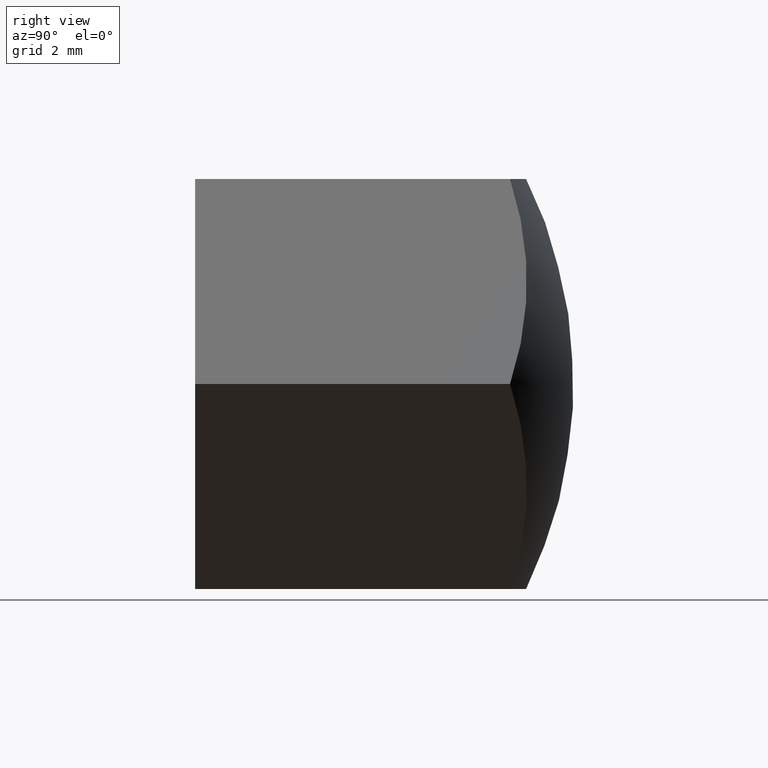
[diagram: clean part render]
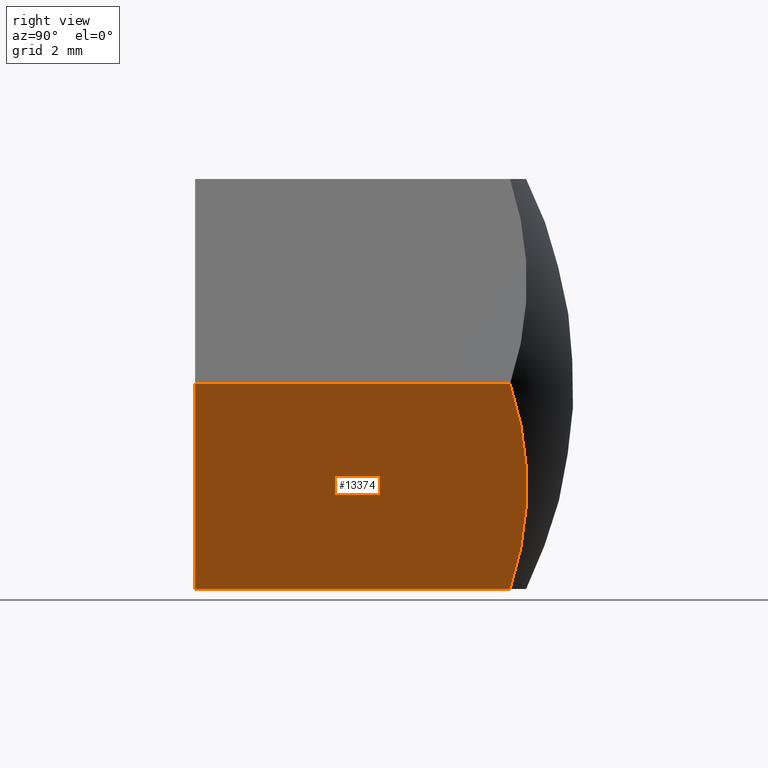
[diagram: same view with one face highlighted and labeled with its STEP entity id]
A machine part, right view. The second image highlights one B-rep face of the part: STEP entity #13374.
In plain terms, the highlighted planar face has unit normal (-0.866, 0, 0.5).
Its self-contained STEP definition (entity closure, byte-faithful):
#349 = DIRECTION ( 'NONE',  ( -0.000000000000000000, -1.000000000000000000, -0.000000000000000000 ) ) ;
#495 = EDGE_CURVE ( 'NONE', #14580, #13228, #7191, .T. ) ;
#525 = VECTOR ( 'NONE', #6351, 1000.000000000000000 ) ;
#716 = EDGE_CURVE ( 'NONE', #11361, #14580, #7917, .T. ) ;
#1242 = CARTESIAN_POINT ( 'NONE',  ( 7.505553499465134948, 0.000000000000000000, -1.452201890551049581E-15 ) ) ;
#1368 = CARTESIAN_POINT ( 'NONE',  ( 3.752776749732564809, 12.00000000000000000, -6.500000000000000000 ) ) ;
#1526 = VECTOR ( 'NONE', #349, 1000.000000000000000 ) ;
#1876 = CARTESIAN_POINT ( 'NONE',  ( 3.752776749732569250, 9.987173159185438465, -6.500000000000001776 ) ) ;
#2177 = ORIENTED_EDGE ( 'NONE', *, *, #495, .T. ) ;
#2382 = DIRECTION ( 'NONE',  ( 0.5000000000000004441, 1.764429300584336178E-15, 0.8660254037844384856 ) ) ;
#2697 = CARTESIAN_POINT ( 'NONE',  ( 7.505553499465134948, 0.000000000000000000, -1.452201890551049581E-15 ) ) ;
#3461 = CARTESIAN_POINT ( 'NONE',  ( 3.752776749732564809, 0.000000000000000000, -6.500000000000000000 ) ) ;
#3841 = EDGE_CURVE ( 'NONE', #14686, #11361, #10254, .T. ) ;
#3847 = CARTESIAN_POINT ( 'NONE',  ( 7.505553499465135836, 9.987173159185438465, 4.336808689942017736E-15 ) ) ;
#3868 = LINE ( 'NONE', #1368, #1526 ) ;
#4089 = ORIENTED_EDGE ( 'NONE', *, *, #11568, .F. ) ;
#5143 = CARTESIAN_POINT ( 'NONE',  ( 7.505553499465134948, 12.00000000000000000, -1.452201890551049581E-15 ) ) ;
#5389 = ORIENTED_EDGE ( 'NONE', *, *, #3841, .T. ) ;
#6230 = EDGE_LOOP ( 'NONE', ( #4089, #5389, #11906, #2177 ) ) ;
#6351 = DIRECTION ( 'NONE',  ( -0.000000000000000000, -1.000000000000000000, -0.000000000000000000 ) ) ;
#7191 = LINE ( 'NONE', #1242, #9023 ) ;
#7470 = DIRECTION ( 'NONE',  ( 0.5000000000000004441, 0.000000000000000000, 0.8660254037844383745 ) ) ;
#7714 = AXIS2_PLACEMENT_3D ( 'NONE', #8601, #8501, #7470 ) ;
#7863 = AXIS2_PLACEMENT_3D ( 'NONE', #11522, #13886, #2382 ) ;
#7917 = LINE ( 'NONE', #5143, #525 ) ;
#8501 = DIRECTION ( 'NONE',  ( -0.8660254037844383745, 0.000000000000000000, 0.5000000000000004441 ) ) ;
#8549 = PLANE ( 'NONE',  #7714 ) ;
#8601 = CARTESIAN_POINT ( 'NONE',  ( 7.505553499465134948, 12.00000000000000000, -1.452201890551049581E-15 ) ) ;
#9023 = VECTOR ( 'NONE', #10481, 1000.000000000000114 ) ;
#10254 = CIRCLE ( 'NONE', #7863, 13.51850583459577848 ) ;
#10481 = DIRECTION ( 'NONE',  ( -0.5000000000000004441, 0.000000000000000000, -0.8660254037844383745 ) ) ;
#11361 = VERTEX_POINT ( 'NONE', #3847 ) ;
#11522 = CARTESIAN_POINT ( 'NONE',  ( 5.629165124598847214, -3.000000000000000888, -3.250000000000001332 ) ) ;
#11568 = EDGE_CURVE ( 'NONE', #14686, #13228, #3868, .T. ) ;
#11906 = ORIENTED_EDGE ( 'NONE', *, *, #716, .T. ) ;
#12292 = FACE_OUTER_BOUND ( 'NONE', #6230, .T. ) ;
#13228 = VERTEX_POINT ( 'NONE', #3461 ) ;
#13374 = ADVANCED_FACE ( 'NONE', ( #12292 ), #8549, .F. ) ;
#13886 = DIRECTION ( 'NONE',  ( 0.8660254037844384856, -0.000000000000000000, -0.5000000000000004441 ) ) ;
#14580 = VERTEX_POINT ( 'NONE', #2697 ) ;
#14686 = VERTEX_POINT ( 'NONE', #1876 ) ;